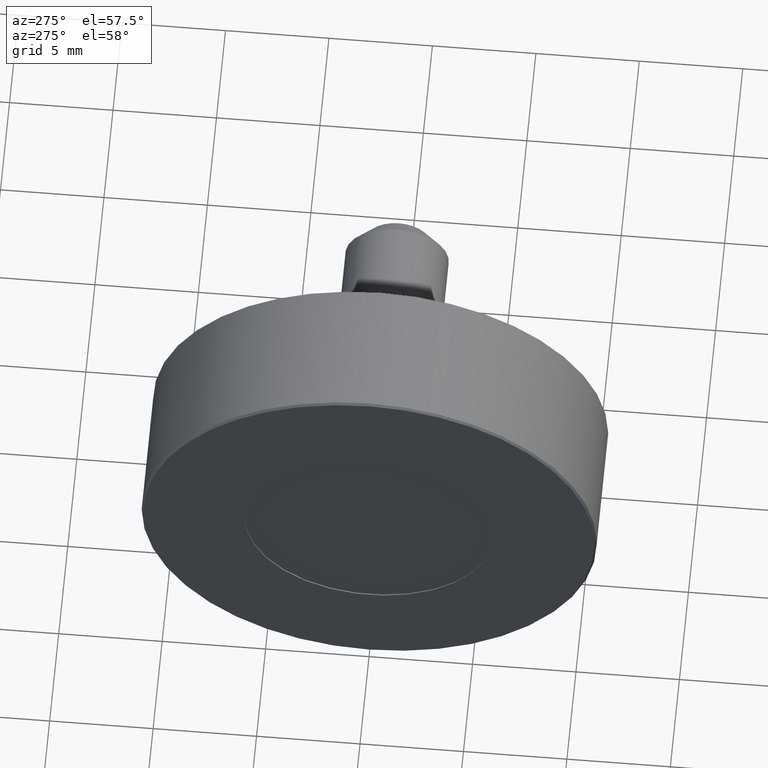
[diagram: clean part render]
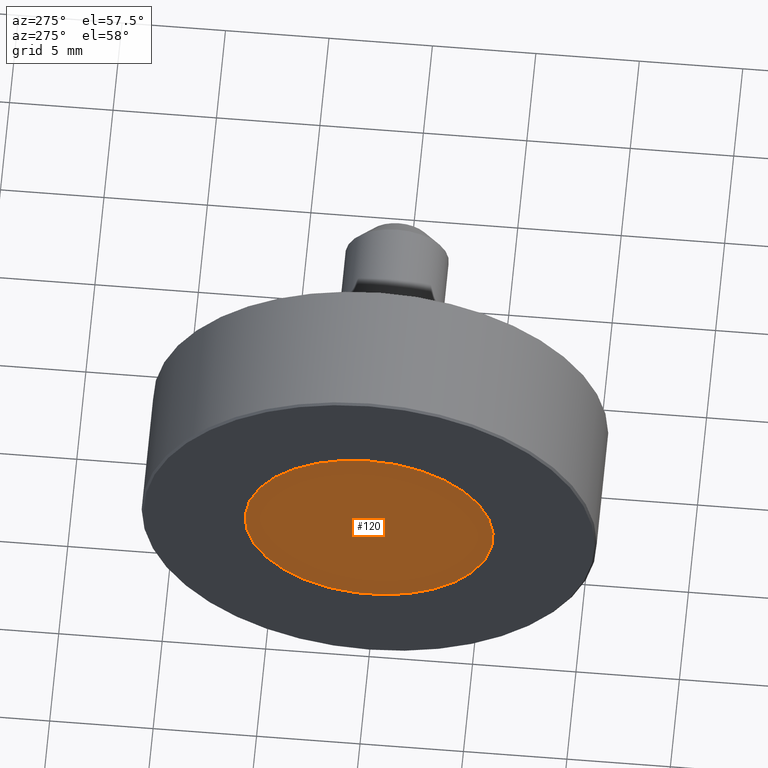
[diagram: same view with one face highlighted and labeled with its STEP entity id]
A machine part, auxiliary view. The second image highlights one B-rep face of the part: STEP entity #120.
In plain terms, the highlighted planar face has unit normal (1, 0, 0).
Its self-contained STEP definition (entity closure, byte-faithful):
#19=PLANE('',#139);
#35=FACE_OUTER_BOUND('',#50,.T.);
#50=EDGE_LOOP('',(#100));
#66=CIRCLE('',#137,6.);
#76=VERTEX_POINT('',#207);
#86=EDGE_CURVE('',#76,#76,#66,.T.);
#100=ORIENTED_EDGE('',*,*,#86,.F.);
#120=ADVANCED_FACE('',(#35),#19,.F.);
#137=AXIS2_PLACEMENT_3D('',#208,#168,#169);
#139=AXIS2_PLACEMENT_3D('',#211,#172,#173);
#168=DIRECTION('center_axis',(1.,0.,0.));
#169=DIRECTION('ref_axis',(0.,0.,-1.));
#172=DIRECTION('center_axis',(1.,0.,0.));
#173=DIRECTION('ref_axis',(0.,0.,-1.));
#207=CARTESIAN_POINT('',(0.05,7.34788079488412E-16,6.));
#208=CARTESIAN_POINT('Origin',(0.05,0.,0.));
#211=CARTESIAN_POINT('Origin',(0.05,-1.54197642309049E-16,-3.69627624575467E-16));